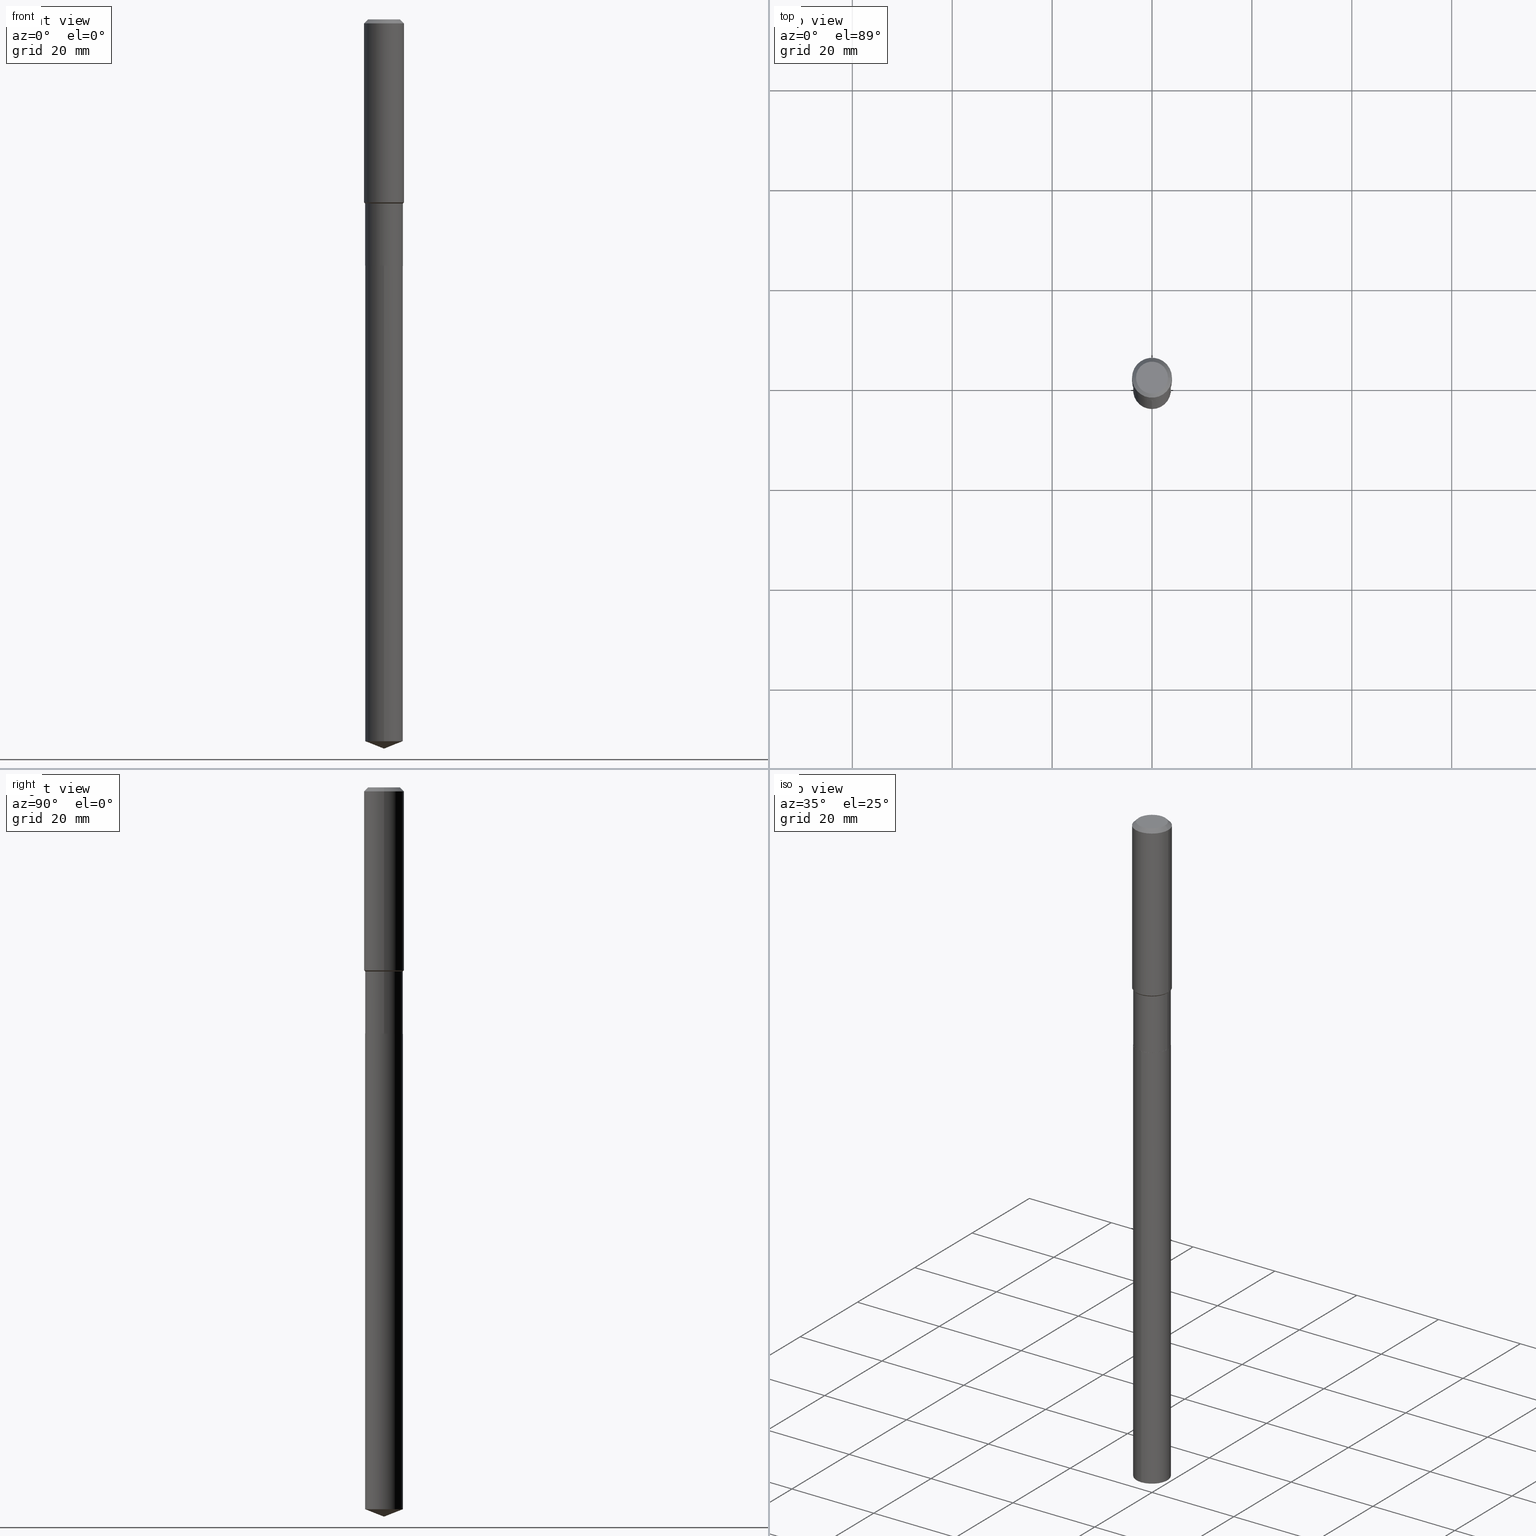
[diagram: canonical four-view strip — front | top / right | iso, engineering-drawing reading convention]
A machine part, canonical four-view strip (front | top / right | iso — engineering-drawing reading convention). The complete STEP part file that produces these views, byte-faithful:
ISO-10303-21;
HEADER;
FILE_DESCRIPTION (( 'STEP AP203' ),
    '1' );
FILE_NAME ('56522.STEP',
    '2024-04-24T18:18:19',
    ( '' ),
    ( '' ),
    'SwSTEP 2.0',
    'SolidWorks 2023',
    '' );
FILE_SCHEMA (( 'CONFIG_CONTROL_DESIGN' ));
ENDSEC;

DATA;
#1 = CONICAL_SURFACE ( 'NONE', #78, 0.1575000000000000011, 0.7853981633974449483 ) ;
#2 = CYLINDRICAL_SURFACE ( 'NONE', #128, 0.1575000000000000844 ) ;
#3 = ORIENTED_EDGE ( 'NONE', *, *, #459, .F. ) ;
#4 = CARTESIAN_POINT ( 'NONE',  ( 0.1575000000000000844, -1.099816621735587677E-15, 7.679978421878603638E-30 ) ) ;
#5 = LINE ( 'NONE', #162, #69 ) ;
#6 = ADVANCED_FACE ( 'NONE', ( #163 ), #2, .T. ) ;
#7 = ORIENTED_EDGE ( 'NONE', *, *, #42, .F. ) ;
#8 = PLANE ( 'NONE',  #30 ) ;
#9 = ORIENTED_EDGE ( 'NONE', *, *, #246, .F. ) ;
#10 = AXIS2_PLACEMENT_3D ( 'NONE', #73, #374, #181 ) ;
#11 = CIRCLE ( 'NONE', #115, 0.1484499999999999986 ) ;
#12 = FACE_OUTER_BOUND ( 'NONE', #213, .T. ) ;
#13 = ORIENTED_EDGE ( 'NONE', *, *, #294, .F. ) ;
#14 = CARTESIAN_POINT ( 'NONE',  ( 4.747633140327824663E-29, -6.778361871230083058E-15, -1.941400000000000237 ) ) ;
#15 = COORDINATED_UNIVERSAL_TIME_OFFSET ( 5, 0, .BEHIND. ) ;
#16 = EDGE_CURVE ( 'NONE', #54, #122, #182, .T. ) ;
#17 = LENGTH_MEASURE_WITH_UNIT ( LENGTH_MEASURE( 0.02539999999999999897 ), #291 );
#18 = ORIENTED_EDGE ( 'NONE', *, *, #83, .T. ) ;
#19 = ORIENTED_EDGE ( 'NONE', *, *, #94, .F. ) ;
#20 = AXIS2_PLACEMENT_3D ( 'NONE', #149, #234, #153 ) ;
#21 = AXIS2_PLACEMENT_3D ( 'NONE', #193, #286, #321 ) ;
#22 = CARTESIAN_POINT ( 'NONE',  ( -8.222513804490250465E-28, 1.173860011146192170E-13, 33.62207874015748388 ) ) ;
#23 = PERSON_AND_ORGANIZATION ( #331, #326 ) ;
#24 = ADVANCED_FACE ( 'NONE', ( #82 ), #254, .T. ) ;
#25 = CARTESIAN_POINT ( 'NONE',  ( -9.439721640706201686E-47, 1.347742071746726764E-32, 3.860086710912459732E-18 ) ) ;
#26 = ORIENTED_EDGE ( 'NONE', *, *, #296, .T. ) ;
#27 = APPLICATION_PROTOCOL_DEFINITION ( 'international standard', 'config_control_design', 1994, #317 ) ;
#28 = FACE_OUTER_BOUND ( 'NONE', #297, .T. ) ;
#29 = AXIS2_PLACEMENT_3D ( 'NONE', #263, #255, #484 ) ;
#30 = AXIS2_PLACEMENT_3D ( 'NONE', #150, #393, #161 ) ;
#31 = DIRECTION ( 'NONE',  ( -2.445468806185136597E-29, 3.491481338843145583E-15, 1.000000000000000000 ) ) ;
#32 = ORIENTED_EDGE ( 'NONE', *, *, #154, .F. ) ;
#33 = ORIENTED_EDGE ( 'NONE', *, *, #126, .T. ) ;
#34 = FACE_OUTER_BOUND ( 'NONE', #488, .T. ) ;
#35 = ORIENTED_EDGE ( 'NONE', *, *, #435, .T. ) ;
#36 = DATE_TIME_ROLE ( 'classification_date' ) ;
#37 = DIRECTION ( 'NONE',  ( 1.000000000000000000, -6.982962677686267499E-15, 0.000000000000000000 ) ) ;
#38 = AXIS2_PLACEMENT_3D ( 'NONE', #63, #405, #412 ) ;
#39 = AXIS2_PLACEMENT_3D ( 'NONE', #487, #362, #361 ) ;
#40 = CARTESIAN_POINT ( 'NONE',  ( -0.1575000000000001676, -3.917182448392135652E-15, -1.442449999999999788 ) ) ;
#41 = PERSON_AND_ORGANIZATION ( #331, #326 ) ;
#42 = EDGE_CURVE ( 'NONE', #370, #430, #159, .T. ) ;
#43 = LOCAL_TIME ( 14, 18, 19.00000000000000000, #143 ) ;
#44 = VERTEX_POINT ( 'NONE', #318 ) ;
#45 = CARTESIAN_POINT ( 'NONE',  ( 1.054800691236008147E-15, 0.1484499999999931985, -1.941400000000000681 ) ) ;
#46 = DIRECTION ( 'NONE',  ( -2.445468806185136877E-29, 3.491481338843145188E-15, 1.000000000000000000 ) ) ;
#47 = ORIENTED_EDGE ( 'NONE', *, *, #264, .T. ) ;
#48 = ORIENTED_EDGE ( 'NONE', *, *, #195, .F. ) ;
#49 = ORIENTED_EDGE ( 'NONE', *, *, #146, .F. ) ;
#50 = CARTESIAN_POINT ( 'NONE',  ( -0.1260000000000000009, 9.348441284752484904E-16, 3.860086710906114178E-18 ) ) ;
#51 = CARTESIAN_POINT ( 'NONE',  ( 4.747633140327824663E-29, -6.778361871230083058E-15, -1.941400000000000237 ) ) ;
#52 = LOCAL_TIME ( 14, 18, 19.00000000000000000, #15 ) ;
#53 = DIRECTION ( 'NONE',  ( 0.7071067811865451302, -7.319954787623248157E-15, -0.7071067811865499042 ) ) ;
#54 = VERTEX_POINT ( 'NONE', #118 ) ;
#55 = DIRECTION ( 'NONE',  ( 1.000000000000000000, -6.982962677686265133E-15, 0.000000000000000000 ) ) ;
#56 = ORIENTED_EDGE ( 'NONE', *, *, #16, .F. ) ;
#57 = ORIENTED_EDGE ( 'NONE', *, *, #111, .T. ) ;
#58 = DIRECTION ( 'NONE',  ( 0.000000000000000000, 0.000000000000000000, 1.000000000000000000 ) ) ;
#59 = VECTOR ( 'NONE', #303, 39.37007874015748143 ) ;
#60 = AXIS2_PLACEMENT_3D ( 'NONE', #431, #451, #85 ) ;
#61 = EDGE_LOOP ( 'NONE', ( #365, #242 ) ) ;
#62 = DIRECTION ( 'NONE',  ( -6.982962677686265922E-15, -1.000000000000000000, 3.498627837349976612E-15 ) ) ;
#63 = CARTESIAN_POINT ( 'NONE',  ( 4.747633140327824663E-29, -6.778361871230083058E-15, -1.941400000000000237 ) ) ;
#64 = PERSON_AND_ORGANIZATION ( #331, #326 ) ;
#65 = FACE_OUTER_BOUND ( 'NONE', #335, .T. ) ;
#66 = CARTESIAN_POINT ( 'NONE',  ( 0.000000000000000000, 0.000000000000000000, 0.000000000000000000 ) ) ;
#67 = ADVANCED_FACE ( 'NONE', ( #194 ), #314, .F. ) ;
#68 = EDGE_LOOP ( 'NONE', ( #119, #320, #200, #48 ) ) ;
#69 = VECTOR ( 'NONE', #409, 39.37007874015748143 ) ;
#70 = LOCAL_TIME ( 14, 18, 19.00000000000000000, #259 ) ;
#71 = APPROVAL ( #103, 'UNSPECIFIED' ) ;
#72 = DIRECTION ( 'NONE',  ( 1.000000000000000000, -6.982962677686265922E-15, 4.876281427513067258E-29 ) ) ;
#73 = CARTESIAN_POINT ( 'NONE',  ( 3.549597972177726133E-29, -5.067885163330826020E-15, -1.451500000000000012 ) ) ;
#74 = FACE_OUTER_BOUND ( 'NONE', #360, .T. ) ;
#75 = CARTESIAN_POINT ( 'NONE',  ( 1.054800691236008147E-15, 0.1484499999999801811, -5.689523989894962774 ) ) ;
#76 = ORIENTED_EDGE ( 'NONE', *, *, #106, .F. ) ;
#77 = CIRCLE ( 'NONE', #205, 0.1260000000000000009 ) ;
#78 = AXIS2_PLACEMENT_3D ( 'NONE', #105, #134, #262 ) ;
#79 = DIRECTION ( 'NONE',  ( 1.000000000000000000, -6.982962677686268288E-15, 0.000000000000000000 ) ) ;
#80 = DIRECTION ( 'NONE',  ( -2.438088387897960049E-29, 3.491481338843145188E-15, 1.000000000000000000 ) ) ;
#81 = ORIENTED_EDGE ( 'NONE', *, *, #126, .F. ) ;
#82 = FACE_OUTER_BOUND ( 'NONE', #304, .T. ) ;
#83 = EDGE_CURVE ( 'NONE', #310, #44, #236, .T. ) ;
#84 = ORIENTED_EDGE ( 'NONE', *, *, #319, .F. ) ;
#85 = DIRECTION ( 'NONE',  ( 1.000000000000000000, -6.982962677686264344E-15, 0.000000000000000000 ) ) ;
#86 = ORIENTED_EDGE ( 'NONE', *, *, #466, .T. ) ;
#87 = DIRECTION ( 'NONE',  ( -6.982962677686265133E-15, -1.000000000000000000, 3.680495781292372402E-15 ) ) ;
#88 = MANIFOLD_SOLID_BREP ( 'Body-Move/Copy2[2]', #442 ) ;
#89 = CARTESIAN_POINT ( 'NONE',  ( 0.1479499999999999982, -7.811491199393766736E-15, -1.941400000000000237 ) ) ;
#90 = AXIS2_PLACEMENT_3D ( 'NONE', #427, #272, #397 ) ;
#91 =( NAMED_UNIT ( * ) PLANE_ANGLE_UNIT ( ) SI_UNIT ( $, .RADIAN. ) );
#92 = DIRECTION ( 'NONE',  ( 1.000000000000000000, -6.982962677686264344E-15, 0.000000000000000000 ) ) ;
#93 =( NAMED_UNIT ( * ) SI_UNIT ( $, .STERADIAN. ) SOLID_ANGLE_UNIT ( ) );
#94 = EDGE_CURVE ( 'NONE', #122, #330, #5, .T. ) ;
#95 = VERTEX_POINT ( 'NONE', #184 ) ;
#96 = PERSON_AND_ORGANIZATION_ROLE ( 'creator' ) ;
#97 = CYLINDRICAL_SURFACE ( 'NONE', #448, 0.1484499999999999431 ) ;
#98 = VECTOR ( 'NONE', #116, 39.37007874015748143 ) ;
#99 = AXIS2_PLACEMENT_3D ( 'NONE', #401, #58, #302 ) ;
#100 = ORIENTED_EDGE ( 'NONE', *, *, #42, .T. ) ;
#101 = CARTESIAN_POINT ( 'NONE',  ( 3.549597972177726133E-29, -5.067885163330826020E-15, -1.451500000000000012 ) ) ;
#102 = DIRECTION ( 'NONE',  ( -2.445468806185136597E-29, 3.491481338843145583E-15, 1.000000000000000000 ) ) ;
#103 = APPROVAL_STATUS ( 'not_yet_approved' ) ;
#104 = EDGE_CURVE ( 'NONE', #482, #330, #354, .T. ) ;
#105 = CARTESIAN_POINT ( 'NONE',  ( 7.703226739483228723E-31, -1.099816621735597661E-16, -0.03150000000000019451 ) ) ;
#106 = EDGE_CURVE ( 'NONE', #44, #248, #196, .T. ) ;
#107 = CARTESIAN_POINT ( 'NONE',  ( 0.1575000000000000011, -1.209798283909146741E-15, -0.03150000000000019451 ) ) ;
#108 = VECTOR ( 'NONE', #348, 39.37007874015748854 ) ;
#109 = CARTESIAN_POINT ( 'NONE',  ( 3.549597972177726133E-29, -5.067885163330826020E-15, -1.451500000000000012 ) ) ;
#110 = CARTESIAN_POINT ( 'NONE',  ( 4.747633140327824663E-29, -6.778361871230083058E-15, -1.941400000000000237 ) ) ;
#111 = EDGE_CURVE ( 'NONE', #381, #455, #323, .T. ) ;
#112 = APPROVAL_ROLE ( '' ) ;
#113 = DIRECTION ( 'NONE',  ( 1.000000000000000000, -6.982962677686266711E-15, 4.876176775795936353E-29 ) ) ;
#114 = CONICAL_SURFACE ( 'NONE', #148, 0.1484499999999999431, 0.7853981633974456145 ) ;
#115 = AXIS2_PLACEMENT_3D ( 'NONE', #269, #416, #79 ) ;
#116 = DIRECTION ( 'NONE',  ( -2.445468806185136877E-29, 3.491481338843145188E-15, 1.000000000000000000 ) ) ;
#117 = ADVANCED_FACE ( 'NONE', ( #267 ), #227, .F. ) ;
#118 = CARTESIAN_POINT ( 'NONE',  ( -1.036620809502387253E-15, -0.1484500000000198716, -5.689523989894962774 ) ) ;
#119 = ORIENTED_EDGE ( 'NONE', *, *, #202, .F. ) ;
#120 = CARTESIAN_POINT ( 'NONE',  ( -1.036620809502478564E-15, -0.1484500000000067710, -1.941399999999999570 ) ) ;
#121 = AXIS2_PLACEMENT_3D ( 'NONE', #22, #288, #62 ) ;
#122 = VERTEX_POINT ( 'NONE', #75 ) ;
#123 = DIRECTION ( 'NONE',  ( 6.611014441532073689E-15, 0.9304175679820281264, 0.3665012267242879762 ) ) ;
#124 = CARTESIAN_POINT ( 'NONE',  ( 4.746410405924732422E-29, -6.776616130560662344E-15, -1.940900000000000292 ) ) ;
#125 = DIRECTION ( 'NONE',  ( -2.445468806185136877E-29, 3.491481338843145188E-15, 1.000000000000000000 ) ) ;
#126 = EDGE_CURVE ( 'NONE', #310, #292, #460, .T. ) ;
#127 = CARTESIAN_POINT ( 'NONE',  ( -1.036620809502478564E-15, -0.1484500000000067710, -1.941399999999999570 ) ) ;
#128 = AXIS2_PLACEMENT_3D ( 'NONE', #285, #390, #157 ) ;
#129 = CIRCLE ( 'NONE', #411, 0.1479499999999999982 ) ;
#130 = PRODUCT_RELATED_PRODUCT_CATEGORY ( 'detail', '', ( #214 ) ) ;
#131 = PERSON_AND_ORGANIZATION ( #331, #326 ) ;
#132 = ADVANCED_FACE ( 'NONE', ( #305 ), #97, .T. ) ;
#133 = APPROVAL_DATE_TIME ( #470, #467 ) ;
#134 = DIRECTION ( 'NONE',  ( 2.445468806185136597E-29, -3.491481338843145583E-15, -1.000000000000000000 ) ) ;
#135 = MECHANICAL_CONTEXT ( 'NONE', #317, 'mechanical' ) ;
#136 = CARTESIAN_POINT ( 'NONE',  ( 0.1484499999999999986, -7.813236940063189028E-15, -1.940900000000000292 ) ) ;
#137 = CLOSED_SHELL ( 'NONE', ( #225, #168, #483, #415, #117 ) ) ;
#138 = VECTOR ( 'NONE', #383, 39.37007874015748143 ) ;
#139 = ORIENTED_EDGE ( 'NONE', *, *, #387, .F. ) ;
#140 = CONICAL_SURFACE ( 'NONE', #60, 0.1484499999999999431, 0.7853981633974456145 ) ;
#141 = DIRECTION ( 'NONE',  ( -2.445468806185136597E-29, 3.491481338843145583E-15, 1.000000000000000000 ) ) ;
#142 = ORIENTED_EDGE ( 'NONE', *, *, #421, .F. ) ;
#143 = COORDINATED_UNIVERSAL_TIME_OFFSET ( 5, 0, .BEHIND. ) ;
#144 = CARTESIAN_POINT ( 'NONE',  ( 3.527466479481750238E-29, -5.036287257214294044E-15, -1.442449999999999788 ) ) ;
#145 = DIRECTION ( 'NONE',  ( -2.445564221112672413E-29, 3.491344699236233540E-15, 1.000000000000000000 ) ) ;
#146 = EDGE_CURVE ( 'NONE', #292, #248, #268, .T. ) ;
#147 = APPROVAL_DATE_TIME ( #349, #473 ) ;
#148 = AXIS2_PLACEMENT_3D ( 'NONE', #109, #260, #414 ) ;
#149 = CARTESIAN_POINT ( 'NONE',  ( 4.747633140327824663E-29, -6.778361871230083058E-15, -1.941400000000000237 ) ) ;
#150 = CARTESIAN_POINT ( 'NONE',  ( -4.719860820353100843E-47, 6.738710358733633822E-33, 1.930043355456229866E-18 ) ) ;
#151 = ADVANCED_FACE ( 'NONE', ( #65 ), #380, .T. ) ;
#152 = CARTESIAN_POINT ( 'NONE',  ( 0.1479499999999999982, -7.811491199393766736E-15, -1.941400000000000237 ) ) ;
#153 = DIRECTION ( 'NONE',  ( 6.982962677686265922E-15, 1.000000000000000000, -3.491344699236233540E-15 ) ) ;
#154 = EDGE_CURVE ( 'NONE', #381, #310, #345, .T. ) ;
#155 = CIRCLE ( 'NONE', #90, 0.1575000000000000011 ) ;
#156 = DIRECTION ( 'NONE',  ( -2.445468806185136597E-29, 3.491481338843145583E-15, 1.000000000000000000 ) ) ;
#157 = DIRECTION ( 'NONE',  ( 1.000000000000000000, -6.982962677686267499E-15, 4.876176775795936353E-29 ) ) ;
#158 = CC_DESIGN_PERSON_AND_ORGANIZATION_ASSIGNMENT ( #417, #313, ( #235 ) ) ;
#159 = LINE ( 'NONE', #490, #98 ) ;
#160 = ORIENTED_EDGE ( 'NONE', *, *, #273, .F. ) ;
#161 = DIRECTION ( 'NONE',  ( -1.000000000000000000, 6.982962677686265922E-15, -4.876176775795935793E-29 ) ) ;
#162 = CARTESIAN_POINT ( 'NONE',  ( 1.054800691235916048E-15, 0.1484499999999931985, -1.941400000000000681 ) ) ;
#163 = FACE_OUTER_BOUND ( 'NONE', #203, .T. ) ;
#164 = ORIENTED_EDGE ( 'NONE', *, *, #429, .F. ) ;
#165 = CARTESIAN_POINT ( 'NONE',  ( -0.1479499999999999982, -5.724464666498904237E-15, -1.941400000000000237 ) ) ;
#166 = CC_DESIGN_PERSON_AND_ORGANIZATION_ASSIGNMENT ( #293, #339, ( #389 ) ) ;
#167 = DIRECTION ( 'NONE',  ( -2.445564221112672413E-29, 3.491344699236233540E-15, 1.000000000000000000 ) ) ;
#168 = ADVANCED_FACE ( 'NONE', ( #34 ), #425, .T. ) ;
#169 = APPROVAL_PERSON_ORGANIZATION ( #64, #467, #408 ) ;
#170 = LINE ( 'NONE', #89, #223 ) ;
#171 = ORIENTED_EDGE ( 'NONE', *, *, #387, .T. ) ;
#172 = DIRECTION ( 'NONE',  ( -2.445468806185136597E-29, 3.491481338843145583E-15, 1.000000000000000000 ) ) ;
#173 = CC_DESIGN_SECURITY_CLASSIFICATION ( #235, ( #389 ) ) ;
#174 = ORIENTED_EDGE ( 'NONE', *, *, #83, .F. ) ;
#175 = DATE_AND_TIME ( #253, #290 ) ;
#176 = EDGE_LOOP ( 'NONE', ( #249, #9, #86, #257 ) ) ;
#177 = DATE_TIME_ROLE ( 'creation_date' ) ;
#178 = LINE ( 'NONE', #190, #475 ) ;
#179 = ORIENTED_EDGE ( 'NONE', *, *, #202, .T. ) ;
#180 = CC_DESIGN_DATE_AND_TIME_ASSIGNMENT ( #226, #36, ( #235 ) ) ;
#181 = DIRECTION ( 'NONE',  ( 1.000000000000000000, -6.982962677686264344E-15, 0.000000000000000000 ) ) ;
#182 = CIRCLE ( 'NONE', #230, 0.1484499999999999986 ) ;
#183 = CALENDAR_DATE ( 2024, 24, 4 ) ;
#184 = CARTESIAN_POINT ( 'NONE',  ( 0.1575000000000001676, -6.136103878949882313E-15, -1.442449999999999788 ) ) ;
#185 = DIRECTION ( 'NONE',  ( -2.445468806185136597E-29, 3.491481338843145583E-15, 1.000000000000000000 ) ) ;
#186 = ORIENTED_EDGE ( 'NONE', *, *, #344, .F. ) ;
#187 = CARTESIAN_POINT ( 'NONE',  ( -8.222513804490250465E-28, 1.173860011146192170E-13, 33.62207874015748388 ) ) ;
#188 = VERTEX_POINT ( 'NONE', #107 ) ;
#189 = EDGE_CURVE ( 'NONE', #122, #54, #308, .T. ) ;
#190 = CARTESIAN_POINT ( 'NONE',  ( 1.405673266587500572E-28, -2.006877987547558797E-14, -5.748000000000000220 ) ) ;
#191 = CONICAL_SURFACE ( 'NONE', #419, 0.1479499999999999982, 0.7853981633975507526 ) ;
#192 = AXIS2_PLACEMENT_3D ( 'NONE', #388, #353, #489 ) ;
#193 = CARTESIAN_POINT ( 'NONE',  ( 7.703226739483228723E-31, -1.099816621735597661E-16, -0.03150000000000019451 ) ) ;
#194 = FACE_OUTER_BOUND ( 'NONE', #283, .T. ) ;
#195 = EDGE_CURVE ( 'NONE', #370, #95, #280, .T. ) ;
#196 = CIRCLE ( 'NONE', #265, 0.1484499999999999431 ) ;
#197 = ORIENTED_EDGE ( 'NONE', *, *, #111, .F. ) ;
#198 = FACE_OUTER_BOUND ( 'NONE', #438, .T. ) ;
#199 = PRODUCT_DEFINITION_SHAPE ( 'NONE', 'NONE',  #256 ) ;
#200 = ORIENTED_EDGE ( 'NONE', *, *, #369, .T. ) ;
#201 = LINE ( 'NONE', #463, #243 ) ;
#202 = EDGE_CURVE ( 'NONE', #44, #370, #220, .T. ) ;
#203 = EDGE_LOOP ( 'NONE', ( #7, #277, #373, #186 ) ) ;
#204 = CYLINDRICAL_SURFACE ( 'NONE', #477, 0.1484499999999999431 ) ;
#205 = AXIS2_PLACEMENT_3D ( 'NONE', #25, #141, #72 ) ;
#206 = CIRCLE ( 'NONE', #10, 0.1484499999999999431 ) ;
#207 = VECTOR ( 'NONE', #125, 39.37007874015748143 ) ;
#208 =( CONVERSION_BASED_UNIT ( 'INCH', #17 ) LENGTH_UNIT ( ) NAMED_UNIT ( #437 ) );
#209 = APPROVAL_ROLE ( '' ) ;
#210 = ADVANCED_FACE ( 'NONE', ( #28 ), #191, .T. ) ;
#211 = VERTEX_POINT ( 'NONE', #379 ) ;
#212 = APPROVAL_DATE_TIME ( #245, #71 ) ;
#213 = EDGE_LOOP ( 'NONE', ( #423, #26, #368, #392 ) ) ;
#214 = PRODUCT ( '56522', '56522', '', ( #135 ) ) ;
#215 = ORIENTED_EDGE ( 'NONE', *, *, #421, .T. ) ;
#216 = APPLICATION_CONTEXT ( 'configuration controlled 3d designs of mechanical parts and assemblies' ) ;
#217 = FACE_OUTER_BOUND ( 'NONE', #68, .T. ) ;
#218 = DIRECTION ( 'NONE',  ( -2.445564221112672413E-29, 3.491344699236233540E-15, 1.000000000000000000 ) ) ;
#219 = DIRECTION ( 'NONE',  ( -6.982962677686265133E-15, -1.000000000000000000, 3.680495781292372402E-15 ) ) ;
#220 = LINE ( 'NONE', #449, #108 ) ;
#221 = DIRECTION ( 'NONE',  ( 1.000000000000000000, -6.982962677686265133E-15, 0.000000000000000000 ) ) ;
#222 = AXIS2_PLACEMENT_3D ( 'NONE', #187, #145, #444 ) ;
#223 = VECTOR ( 'NONE', #456, 39.37007874015748143 ) ;
#224 = DIRECTION ( 'NONE',  ( -2.445468806185136597E-29, 3.491481338843145583E-15, 1.000000000000000000 ) ) ;
#225 = ADVANCED_FACE ( 'NONE', ( #446 ), #307, .T. ) ;
#226 = DATE_AND_TIME ( #351, #486 ) ;
#227 = PLANE ( 'NONE',  #20 ) ;
#228 = CARTESIAN_POINT ( 'NONE',  ( 0.1484499999999999431, -6.104505972833351915E-15, -1.451500000000000012 ) ) ;
#229 = DIRECTION ( 'NONE',  ( -2.445564221112672413E-29, 3.491344699236233540E-15, 1.000000000000000000 ) ) ;
#230 = AXIS2_PLACEMENT_3D ( 'NONE', #457, #167, #316 ) ;
#231 = CARTESIAN_POINT ( 'NONE',  ( 0.1260000000000000009, -1.027466422270894443E-15, 3.860086710919128072E-18 ) ) ;
#232 = ADVANCED_FACE ( 'NONE', ( #217 ), #114, .T. ) ;
#233 = ORIENTED_EDGE ( 'NONE', *, *, #154, .T. ) ;
#234 = DIRECTION ( 'NONE',  ( 2.445564221112672413E-29, -3.491344699236233540E-15, -1.000000000000000000 ) ) ;
#235 = SECURITY_CLASSIFICATION ( '', '', #386 ) ;
#236 = LINE ( 'NONE', #394, #274 ) ;
#237 = ORIENTED_EDGE ( 'NONE', *, *, #94, .T. ) ;
#238 = DIRECTION ( 'NONE',  ( -2.445468806185136597E-29, 3.491481338843145583E-15, 1.000000000000000000 ) ) ;
#239 = FACE_OUTER_BOUND ( 'NONE', #338, .T. ) ;
#240 = LINE ( 'NONE', #120, #276 ) ;
#241 = AXIS2_PLACEMENT_3D ( 'NONE', #479, #333, #219 ) ;
#242 = ORIENTED_EDGE ( 'NONE', *, *, #459, .T. ) ;
#243 = VECTOR ( 'NONE', #123, 39.37007874015748854 ) ;
#244 = EDGE_CURVE ( 'NONE', #248, #44, #206, .T. ) ;
#245 = DATE_AND_TIME ( #436, #70 ) ;
#246 = EDGE_CURVE ( 'NONE', #341, #395, #299, .T. ) ;
#247 = MANIFOLD_SOLID_BREP ( 'Body-Move/Copy2[1]', #137 ) ;
#248 = VERTEX_POINT ( 'NONE', #228 ) ;
#249 = ORIENTED_EDGE ( 'NONE', *, *, #296, .F. ) ;
#250 = ORIENTED_EDGE ( 'NONE', *, *, #189, .T. ) ;
#251 = DIRECTION ( 'NONE',  ( -6.982962677686265133E-15, -1.000000000000000000, 3.680495781292372402E-15 ) ) ;
#252 = ORIENTED_EDGE ( 'NONE', *, *, #429, .T. ) ;
#253 = CALENDAR_DATE ( 2024, 24, 4 ) ;
#254 = CONICAL_SURFACE ( 'NONE', #485, 0.1479499999999999982, 0.7853981633975507526 ) ;
#255 = DIRECTION ( 'NONE',  ( -2.445564221112672413E-29, 3.491344699236233540E-15, 1.000000000000000000 ) ) ;
#256 = PRODUCT_DEFINITION ( 'UNKNOWN', '', #389, #271 ) ;
#257 = ORIENTED_EDGE ( 'NONE', *, *, #344, .T. ) ;
#258 = ORIENTED_EDGE ( 'NONE', *, *, #16, .T. ) ;
#259 = COORDINATED_UNIVERSAL_TIME_OFFSET ( 5, 0, .BEHIND. ) ;
#260 = DIRECTION ( 'NONE',  ( -2.445468806185136597E-29, 3.491481338843145583E-15, 1.000000000000000000 ) ) ;
#261 = PERSON_AND_ORGANIZATION_ROLE ( 'design_owner' ) ;
#262 = DIRECTION ( 'NONE',  ( -1.000000000000000000, 6.982962677686265922E-15, 0.000000000000000000 ) ) ;
#263 = CARTESIAN_POINT ( 'NONE',  ( 1.391391106630902087E-28, -1.986435469543002324E-14, -5.689523989894962774 ) ) ;
#264 = EDGE_CURVE ( 'NONE', #395, #341, #77, .T. ) ;
#265 = AXIS2_PLACEMENT_3D ( 'NONE', #101, #471, #92 ) ;
#266 = CIRCLE ( 'NONE', #334, 0.1484499999999999986 ) ;
#267 = FACE_OUTER_BOUND ( 'NONE', #61, .T. ) ;
#268 = LINE ( 'NONE', #300, #59 ) ;
#269 = CARTESIAN_POINT ( 'NONE',  ( 4.746410405924732422E-29, -6.776616130560662344E-15, -1.940900000000000292 ) ) ;
#270 = PERSON_AND_ORGANIZATION_ROLE ( 'design_supplier' ) ;
#271 = DESIGN_CONTEXT ( 'detailed design', #216, 'design' ) ;
#272 = DIRECTION ( 'NONE',  ( -2.445468806185136597E-29, 3.491481338843145583E-15, 1.000000000000000000 ) ) ;
#273 = EDGE_CURVE ( 'NONE', #211, #54, #178, .T. ) ;
#274 = VECTOR ( 'NONE', #46, 39.37007874015748143 ) ;
#275 = CC_DESIGN_APPROVAL ( #71, ( #256 ) ) ;
#276 = VECTOR ( 'NONE', #398, 39.37007874015748143 ) ;
#277 = ORIENTED_EDGE ( 'NONE', *, *, #195, .T. ) ;
#278 = DIRECTION ( 'NONE',  ( 1.000000000000000000, -6.982962677686265133E-15, 0.000000000000000000 ) ) ;
#279 = ADVANCED_FACE ( 'NONE', ( #474 ), #1, .T. ) ;
#280 = CIRCLE ( 'NONE', #332, 0.1575000000000001676 ) ;
#281 = ORIENTED_EDGE ( 'NONE', *, *, #244, .T. ) ;
#282 = CARTESIAN_POINT ( 'NONE',  ( -0.1575000000000000011, -1.454029650871768556E-15, -0.03150000000000019451 ) ) ;
#283 = EDGE_LOOP ( 'NONE', ( #359, #197 ) ) ;
#284 = FACE_OUTER_BOUND ( 'NONE', #287, .T. ) ;
#285 = CARTESIAN_POINT ( 'NONE',  ( 0.000000000000000000, 0.000000000000000000, 0.000000000000000000 ) ) ;
#286 = DIRECTION ( 'NONE',  ( 2.445468806185136597E-29, -3.491481338843145583E-15, -1.000000000000000000 ) ) ;
#287 = EDGE_LOOP ( 'NONE', ( #19, #250, #252, #3 ) ) ;
#288 = DIRECTION ( 'NONE',  ( -2.445564221112672413E-29, 3.491344699236233540E-15, 1.000000000000000000 ) ) ;
#289 = AXIS2_PLACEMENT_3D ( 'NONE', #14, #172, #55 ) ;
#290 = LOCAL_TIME ( 14, 18, 19.00000000000000000, #367 ) ;
#291 =( LENGTH_UNIT ( ) NAMED_UNIT ( * ) SI_UNIT ( $, .METRE. ) );
#292 = VERTEX_POINT ( 'NONE', #136 ) ;
#293 = PERSON_AND_ORGANIZATION ( #331, #326 ) ;
#294 = EDGE_CURVE ( 'NONE', #188, #430, #155, .T. ) ;
#295 = DIRECTION ( 'NONE',  ( 1.000000000000000000, -6.982962677686266711E-15, 4.876176775795936353E-29 ) ) ;
#296 = EDGE_CURVE ( 'NONE', #395, #188, #325, .T. ) ;
#297 = EDGE_LOOP ( 'NONE', ( #32, #57, #215, #81 ) ) ;
#298 = PERSON_AND_ORGANIZATION ( #331, #326 ) ;
#299 = CIRCLE ( 'NONE', #342, 0.1260000000000000009 ) ;
#300 = CARTESIAN_POINT ( 'NONE',  ( 0.1484499999999999431, -1.036620809502525896E-15, 7.238684423669065009E-30 ) ) ;
#301 = VECTOR ( 'NONE', #465, 39.37007874015748143 ) ;
#302 = DIRECTION ( 'NONE',  ( 1.000000000000000000, 0.000000000000000000, 0.000000000000000000 ) ) ;
#303 = DIRECTION ( 'NONE',  ( -2.445468806185136877E-29, 3.491481338843145188E-15, 1.000000000000000000 ) ) ;
#304 = EDGE_LOOP ( 'NONE', ( #384, #233, #469, #142 ) ) ;
#305 = FACE_OUTER_BOUND ( 'NONE', #462, .T. ) ;
#306 = SHAPE_DEFINITION_REPRESENTATION ( #199, #428 ) ;
#307 = CYLINDRICAL_SURFACE ( 'NONE', #38, 0.1484499999999999986 ) ;
#308 = CIRCLE ( 'NONE', #29, 0.1484499999999999986 ) ;
#309 = LINE ( 'NONE', #464, #364 ) ;
#310 = VERTEX_POINT ( 'NONE', #350 ) ;
#311 = CC_DESIGN_PERSON_AND_ORGANIZATION_ASSIGNMENT ( #23, #261, ( #214 ) ) ;
#312 = DIRECTION ( 'NONE',  ( 0.7071067811865454633, -2.468850131082235761E-15, 0.7071067811865493491 ) ) ;
#313 = PERSON_AND_ORGANIZATION_ROLE ( 'classification_officer' ) ;
#314 = PLANE ( 'NONE',  #454 ) ;
#315 = CIRCLE ( 'NONE', #192, 0.1575000000000001676 ) ;
#316 = DIRECTION ( 'NONE',  ( -6.982962677686265133E-15, -1.000000000000000000, 0.000000000000000000 ) ) ;
#317 = APPLICATION_CONTEXT ( 'configuration controlled 3d designs of mechanical parts and assemblies' ) ;
#318 = CARTESIAN_POINT ( 'NONE',  ( -0.1484499999999999431, -4.867449955709876057E-15, -1.451500000000000012 ) ) ;
#319 = EDGE_CURVE ( 'NONE', #95, #188, #453, .T. ) ;
#320 = ORIENTED_EDGE ( 'NONE', *, *, #106, .T. ) ;
#321 = DIRECTION ( 'NONE',  ( -1.000000000000000000, 6.982962677686265922E-15, 0.000000000000000000 ) ) ;
#322 = CARTESIAN_POINT ( 'NONE',  ( 4.747633140327824663E-29, -6.778361871230083058E-15, -1.941400000000000237 ) ) ;
#323 = CIRCLE ( 'NONE', #289, 0.1479499999999999982 ) ;
#324 = EDGE_LOOP ( 'NONE', ( #139, #406, #426 ) ) ;
#325 = LINE ( 'NONE', #432, #420 ) ;
#326 = ORGANIZATION ( 'UNSPECIFIED', 'UNSPECIFIED', '' ) ;
#327 = CARTESIAN_POINT ( 'NONE',  ( 0.000000000000000000, 0.000000000000000000, 0.000000000000000000 ) ) ;
#328 = EDGE_LOOP ( 'NONE', ( #258, #237, #336, #164 ) ) ;
#329 = LINE ( 'NONE', #441, #301 ) ;
#330 = VERTEX_POINT ( 'NONE', #45 ) ;
#331 = PERSON ( 'UNSPECIFIED', 'UNSPECIFIED', 'UNSPECIFIED', ('UNSPECIFIED'), ('UNSPECIFIED'), ('UNSPECIFIED') ) ;
#332 = AXIS2_PLACEMENT_3D ( 'NONE', #144, #31, #37 ) ;
#333 = DIRECTION ( 'NONE',  ( -2.445564221112672413E-29, 3.491344699236233540E-15, 1.000000000000000000 ) ) ;
#334 = AXIS2_PLACEMENT_3D ( 'NONE', #434, #218, #251 ) ;
#335 = EDGE_LOOP ( 'NONE', ( #346, #100, #13, #84 ) ) ;
#336 = ORIENTED_EDGE ( 'NONE', *, *, #104, .F. ) ;
#337 = APPROVAL_STATUS ( 'not_yet_approved' ) ;
#338 = EDGE_LOOP ( 'NONE', ( #35, #18, #440, #49 ) ) ;
#339 = PERSON_AND_ORGANIZATION_ROLE ( 'creator' ) ;
#340 = CARTESIAN_POINT ( 'NONE',  ( 0.000000000000000000, 0.000000000000000000, 0.000000000000000000 ) ) ;
#341 = VERTEX_POINT ( 'NONE', #50 ) ;
#342 = AXIS2_PLACEMENT_3D ( 'NONE', #343, #478, #407 ) ;
#343 = CARTESIAN_POINT ( 'NONE',  ( -9.439721640706201686E-47, 1.347742071746726764E-32, 3.860086710912459732E-18 ) ) ;
#344 = EDGE_CURVE ( 'NONE', #430, #188, #355, .T. ) ;
#345 = LINE ( 'NONE', #447, #138 ) ;
#346 = ORIENTED_EDGE ( 'NONE', *, *, #450, .T. ) ;
#347 = COORDINATED_UNIVERSAL_TIME_OFFSET ( 5, 0, .BEHIND. ) ;
#348 = DIRECTION ( 'NONE',  ( -0.7071067811865454633, 7.493145998870346272E-15, 0.7071067811865493491 ) ) ;
#349 = DATE_AND_TIME ( #183, #43 ) ;
#350 = CARTESIAN_POINT ( 'NONE',  ( -0.1484499999999999986, -4.867449955709874479E-15, -1.940900000000000292 ) ) ;
#351 = CALENDAR_DATE ( 2024, 24, 4 ) ;
#352 = EDGE_CURVE ( 'NONE', #455, #381, #129, .T. ) ;
#353 = DIRECTION ( 'NONE',  ( -2.445468806185136597E-29, 3.491481338843145583E-15, 1.000000000000000000 ) ) ;
#354 = CIRCLE ( 'NONE', #241, 0.1484499999999999986 ) ;
#355 = CIRCLE ( 'NONE', #39, 0.1575000000000000011 ) ;
#356 = ADVANCED_FACE ( 'NONE', ( #74 ), #8, .F. ) ;
#357 = CARTESIAN_POINT ( 'NONE',  ( 4.747633140327824663E-29, -6.778361871230083058E-15, -1.941400000000000237 ) ) ;
#358 = CYLINDRICAL_SURFACE ( 'NONE', #372, 0.1484499999999999986 ) ;
#359 = ORIENTED_EDGE ( 'NONE', *, *, #352, .F. ) ;
#360 = EDGE_LOOP ( 'NONE', ( #458, #47 ) ) ;
#361 = DIRECTION ( 'NONE',  ( 1.000000000000000000, -6.982962677686265922E-15, 0.000000000000000000 ) ) ;
#362 = DIRECTION ( 'NONE',  ( -2.445468806185136597E-29, 3.491481338843145583E-15, 1.000000000000000000 ) ) ;
#363 = CC_DESIGN_PERSON_AND_ORGANIZATION_ASSIGNMENT ( #298, #270, ( #389 ) ) ;
#364 = VECTOR ( 'NONE', #312, 39.37007874015748854 ) ;
#365 = ORIENTED_EDGE ( 'NONE', *, *, #104, .T. ) ;
#366 = ADVANCED_FACE ( 'NONE', ( #239 ), #204, .T. ) ;
#367 = COORDINATED_UNIVERSAL_TIME_OFFSET ( 5, 0, .BEHIND. ) ;
#368 = ORIENTED_EDGE ( 'NONE', *, *, #294, .T. ) ;
#369 = EDGE_CURVE ( 'NONE', #248, #95, #309, .T. ) ;
#370 = VERTEX_POINT ( 'NONE', #40 ) ;
#371 = PERSON_AND_ORGANIZATION ( #331, #326 ) ;
#372 = AXIS2_PLACEMENT_3D ( 'NONE', #110, #229, #87 ) ;
#373 = ORIENTED_EDGE ( 'NONE', *, *, #319, .T. ) ;
#374 = DIRECTION ( 'NONE',  ( -2.445468806185136597E-29, 3.491481338843145583E-15, 1.000000000000000000 ) ) ;
#375 = ORIENTED_EDGE ( 'NONE', *, *, #369, .F. ) ;
#376 = DIRECTION ( 'NONE',  ( 1.000000000000000000, -6.982962677686267499E-15, 4.876176775795936353E-29 ) ) ;
#377 = ORIENTED_EDGE ( 'NONE', *, *, #450, .F. ) ;
#378 =( GEOMETRIC_REPRESENTATION_CONTEXT ( 3 ) GLOBAL_UNCERTAINTY_ASSIGNED_CONTEXT ( ( #480 ) ) GLOBAL_UNIT_ASSIGNED_CONTEXT ( ( #208, #91, #93 ) ) REPRESENTATION_CONTEXT ( 'NONE', 'WORKASPACE' ) );
#379 = CARTESIAN_POINT ( 'NONE',  ( 1.405710314295564132E-28, -2.006824933120987397E-14, -5.748000000000000220 ) ) ;
#380 = CYLINDRICAL_SURFACE ( 'NONE', #468, 0.1575000000000000844 ) ;
#381 = VERTEX_POINT ( 'NONE', #165 ) ;
#382 = APPROVAL_STATUS ( 'not_yet_approved' ) ;
#383 = DIRECTION ( 'NONE',  ( -0.7071067811866199593, 7.493145998870616062E-15, 0.7071067811864750752 ) ) ;
#384 = ORIENTED_EDGE ( 'NONE', *, *, #352, .T. ) ;
#385 = CC_DESIGN_DATE_AND_TIME_ASSIGNMENT ( #175, #177, ( #256 ) ) ;
#386 = SECURITY_CLASSIFICATION_LEVEL ( 'unclassified' ) ;
#387 = EDGE_CURVE ( 'NONE', #211, #122, #201, .T. ) ;
#388 = CARTESIAN_POINT ( 'NONE',  ( 3.527466479481750238E-29, -5.036287257214294044E-15, -1.442449999999999788 ) ) ;
#389 = PRODUCT_DEFINITION_FORMATION_WITH_SPECIFIED_SOURCE ( 'ANY', '', #214, .NOT_KNOWN. ) ;
#390 = DIRECTION ( 'NONE',  ( -2.445468806185136597E-29, 3.491481338843145583E-15, 1.000000000000000000 ) ) ;
#391 = CC_DESIGN_APPROVAL ( #467, ( #389 ) ) ;
#392 = ORIENTED_EDGE ( 'NONE', *, *, #466, .F. ) ;
#393 = DIRECTION ( 'NONE',  ( 2.438088387897960049E-29, -3.491481338843145188E-15, -1.000000000000000000 ) ) ;
#394 = CARTESIAN_POINT ( 'NONE',  ( -0.1484499999999999431, 1.054800691235868322E-15, -7.302159141483405952E-30 ) ) ;
#395 = VERTEX_POINT ( 'NONE', #231 ) ;
#396 = DIRECTION ( 'NONE',  ( -2.445468806185136597E-29, 3.491481338843145583E-15, 1.000000000000000000 ) ) ;
#397 = DIRECTION ( 'NONE',  ( 1.000000000000000000, -6.982962677686265922E-15, 0.000000000000000000 ) ) ;
#398 = DIRECTION ( 'NONE',  ( -2.445564221112672413E-29, 3.491344699236233540E-15, 1.000000000000000000 ) ) ;
#399 = CALENDAR_DATE ( 2024, 24, 4 ) ;
#400 = ADVANCED_FACE ( 'NONE', ( #198 ), #140, .T. ) ;
#401 = CARTESIAN_POINT ( 'NONE',  ( 0.000000000000000000, 0.000000000000000000, 0.000000000000000000 ) ) ;
#402 = FACE_OUTER_BOUND ( 'NONE', #324, .T. ) ;
#403 = AXIS2_PLACEMENT_3D ( 'NONE', #124, #102, #481 ) ;
#404 = CONICAL_SURFACE ( 'NONE', #21, 0.1575000000000000011, 0.7853981633974449483 ) ;
#405 = DIRECTION ( 'NONE',  ( -2.445564221112672413E-29, 3.491344699236233540E-15, 1.000000000000000000 ) ) ;
#406 = ORIENTED_EDGE ( 'NONE', *, *, #273, .T. ) ;
#407 = DIRECTION ( 'NONE',  ( 1.000000000000000000, -6.982962677686265922E-15, 4.876281427513067258E-29 ) ) ;
#408 = APPROVAL_ROLE ( '' ) ;
#409 = DIRECTION ( 'NONE',  ( -2.445564221112672413E-29, 3.491344699236233540E-15, 1.000000000000000000 ) ) ;
#410 = CARTESIAN_POINT ( 'NONE',  ( 4.747633140327824663E-29, -6.778361871230083058E-15, -1.941400000000000237 ) ) ;
#411 = AXIS2_PLACEMENT_3D ( 'NONE', #51, #238, #418 ) ;
#412 = DIRECTION ( 'NONE',  ( -6.982962677686265133E-15, -1.000000000000000000, 3.680495781292372402E-15 ) ) ;
#413 = ADVANCED_FACE ( 'NONE', ( #12 ), #404, .T. ) ;
#414 = DIRECTION ( 'NONE',  ( 1.000000000000000000, -6.982962677686264344E-15, 0.000000000000000000 ) ) ;
#415 = ADVANCED_FACE ( 'NONE', ( #284 ), #358, .T. ) ;
#416 = DIRECTION ( 'NONE',  ( -2.445468806185136597E-29, 3.491481338843145583E-15, 1.000000000000000000 ) ) ;
#417 = PERSON_AND_ORGANIZATION ( #331, #326 ) ;
#418 = DIRECTION ( 'NONE',  ( 1.000000000000000000, -6.982962677686265133E-15, 0.000000000000000000 ) ) ;
#419 = AXIS2_PLACEMENT_3D ( 'NONE', #410, #185, #221 ) ;
#420 = VECTOR ( 'NONE', #53, 39.37007874015748143 ) ;
#421 = EDGE_CURVE ( 'NONE', #455, #292, #170, .T. ) ;
#422 = CC_DESIGN_PERSON_AND_ORGANIZATION_ASSIGNMENT ( #371, #96, ( #256 ) ) ;
#423 = ORIENTED_EDGE ( 'NONE', *, *, #264, .F. ) ;
#424 = DIRECTION ( 'NONE',  ( 1.000000000000000000, -6.982962677686265922E-15, 4.876176775795935793E-29 ) ) ;
#425 = CONICAL_SURFACE ( 'NONE', #222, 99.94676754584075695, 1.195550537616122178 ) ;
#426 = ORIENTED_EDGE ( 'NONE', *, *, #189, .F. ) ;
#427 = CARTESIAN_POINT ( 'NONE',  ( 7.703226739483228723E-31, -1.099816621735597661E-16, -0.03150000000000019451 ) ) ;
#428 = ADVANCED_BREP_SHAPE_REPRESENTATION ( '56522', ( #247, #88, #99 ), #378 ) ;
#429 = EDGE_CURVE ( 'NONE', #54, #482, #240, .T. ) ;
#430 = VERTEX_POINT ( 'NONE', #282 ) ;
#431 = CARTESIAN_POINT ( 'NONE',  ( 3.549597972177726133E-29, -5.067885163330826020E-15, -1.451500000000000012 ) ) ;
#432 = CARTESIAN_POINT ( 'NONE',  ( 0.1575000000000000011, -1.190510096822576026E-15, -0.03150000000000019451 ) ) ;
#433 = CC_DESIGN_APPROVAL ( #473, ( #235 ) ) ;
#434 = CARTESIAN_POINT ( 'NONE',  ( 4.747633140327824663E-29, -6.778361871230083058E-15, -1.941400000000000237 ) ) ;
#435 = EDGE_CURVE ( 'NONE', #292, #310, #11, .T. ) ;
#436 = CALENDAR_DATE ( 2024, 24, 4 ) ;
#437 = DIMENSIONAL_EXPONENTS ( 1.000000000000000000, 0.000000000000000000, 0.000000000000000000, 0.000000000000000000, 0.000000000000000000, 0.000000000000000000, 0.000000000000000000 ) ;
#438 = EDGE_LOOP ( 'NONE', ( #281, #179, #377, #375 ) ) ;
#439 = DIRECTION ( 'NONE',  ( -2.445468806185136597E-29, 3.491481338843145583E-15, 1.000000000000000000 ) ) ;
#440 = ORIENTED_EDGE ( 'NONE', *, *, #244, .F. ) ;
#441 = CARTESIAN_POINT ( 'NONE',  ( -0.1575000000000000011, 9.898349595620272334E-16, -0.03150000000000019451 ) ) ;
#442 = CLOSED_SHELL ( 'NONE', ( #24, #413, #151, #400, #366, #132, #232, #6, #279, #356, #67, #210 ) ) ;
#443 = APPROVAL_PERSON_ORGANIZATION ( #41, #473, #112 ) ;
#444 = DIRECTION ( 'NONE',  ( -6.982962677686265922E-15, -1.000000000000000000, 3.498627837349976612E-15 ) ) ;
#445 = APPLICATION_PROTOCOL_DEFINITION ( 'international standard', 'config_control_design', 1994, #216 ) ;
#446 = FACE_OUTER_BOUND ( 'NONE', #328, .T. ) ;
#447 = CARTESIAN_POINT ( 'NONE',  ( -0.1479499999999999982, -5.727113893673015438E-15, -1.941400000000000237 ) ) ;
#448 = AXIS2_PLACEMENT_3D ( 'NONE', #66, #439, #295 ) ;
#449 = CARTESIAN_POINT ( 'NONE',  ( -0.1484499999999999431, -4.013084472094957501E-15, -1.451500000000000012 ) ) ;
#450 = EDGE_CURVE ( 'NONE', #95, #370, #315, .T. ) ;
#451 = DIRECTION ( 'NONE',  ( -2.445468806185136597E-29, 3.491481338843145583E-15, 1.000000000000000000 ) ) ;
#452 = ORIENTED_EDGE ( 'NONE', *, *, #146, .T. ) ;
#453 = LINE ( 'NONE', #4, #207 ) ;
#454 = AXIS2_PLACEMENT_3D ( 'NONE', #322, #80, #424 ) ;
#455 = VERTEX_POINT ( 'NONE', #152 ) ;
#456 = DIRECTION ( 'NONE',  ( 0.7071067811866199593, -2.468850131083015945E-15, 0.7071067811864750752 ) ) ;
#457 = CARTESIAN_POINT ( 'NONE',  ( 1.391391106630902087E-28, -1.986435469543002324E-14, -5.689523989894962774 ) ) ;
#458 = ORIENTED_EDGE ( 'NONE', *, *, #246, .T. ) ;
#459 = EDGE_CURVE ( 'NONE', #330, #482, #266, .T. ) ;
#460 = CIRCLE ( 'NONE', #403, 0.1484499999999999986 ) ;
#461 = CONICAL_SURFACE ( 'NONE', #121, 99.94676754584075695, 1.195550537616122178 ) ;
#462 = EDGE_LOOP ( 'NONE', ( #174, #33, #452, #76 ) ) ;
#463 = CARTESIAN_POINT ( 'NONE',  ( 1.405710639160232353E-28, -2.006824933120987397E-14, -5.748000000000000220 ) ) ;
#464 = CARTESIAN_POINT ( 'NONE',  ( 0.1484499999999999431, -6.104505972833351915E-15, -1.451500000000000012 ) ) ;
#465 = DIRECTION ( 'NONE',  ( -0.7071067811865451302, 2.468850131082231817E-15, -0.7071067811865499042 ) ) ;
#466 = EDGE_CURVE ( 'NONE', #341, #430, #329, .T. ) ;
#467 = APPROVAL ( #337, 'UNSPECIFIED' ) ;
#468 = AXIS2_PLACEMENT_3D ( 'NONE', #340, #224, #376 ) ;
#469 = ORIENTED_EDGE ( 'NONE', *, *, #435, .F. ) ;
#470 = DATE_AND_TIME ( #399, #52 ) ;
#471 = DIRECTION ( 'NONE',  ( -2.445468806185136597E-29, 3.491481338843145583E-15, 1.000000000000000000 ) ) ;
#472 = DIRECTION ( 'NONE',  ( -6.497071151882127725E-15, -0.9304175679820255729, 0.3665012267242945820 ) ) ;
#473 = APPROVAL ( #382, 'UNSPECIFIED' ) ;
#474 = FACE_OUTER_BOUND ( 'NONE', #176, .T. ) ;
#475 = VECTOR ( 'NONE', #472, 39.37007874015748143 ) ;
#476 = APPROVAL_PERSON_ORGANIZATION ( #131, #71, #209 ) ;
#477 = AXIS2_PLACEMENT_3D ( 'NONE', #327, #396, #113 ) ;
#478 = DIRECTION ( 'NONE',  ( -2.445468806185136597E-29, 3.491481338843145583E-15, 1.000000000000000000 ) ) ;
#479 = CARTESIAN_POINT ( 'NONE',  ( 4.747633140327824663E-29, -6.778361871230083058E-15, -1.941400000000000237 ) ) ;
#480 = UNCERTAINTY_MEASURE_WITH_UNIT (LENGTH_MEASURE( 1.000000000000000082E-05 ), #208, 'distance_accuracy_value', 'NONE');
#481 = DIRECTION ( 'NONE',  ( 1.000000000000000000, -6.982962677686268288E-15, 0.000000000000000000 ) ) ;
#482 = VERTEX_POINT ( 'NONE', #127 ) ;
#483 = ADVANCED_FACE ( 'NONE', ( #402 ), #461, .T. ) ;
#484 = DIRECTION ( 'NONE',  ( -6.982962677686265133E-15, -1.000000000000000000, 0.000000000000000000 ) ) ;
#485 = AXIS2_PLACEMENT_3D ( 'NONE', #357, #156, #278 ) ;
#486 = LOCAL_TIME ( 14, 18, 19.00000000000000000, #347 ) ;
#487 = CARTESIAN_POINT ( 'NONE',  ( 7.703226739483228723E-31, -1.099816621735597661E-16, -0.03150000000000019451 ) ) ;
#488 = EDGE_LOOP ( 'NONE', ( #160, #171, #56 ) ) ;
#489 = DIRECTION ( 'NONE',  ( 1.000000000000000000, -6.982962677686267499E-15, 0.000000000000000000 ) ) ;
#490 = CARTESIAN_POINT ( 'NONE',  ( -0.1575000000000000844, 1.119104808822158392E-15, -7.747322767151481189E-30 ) ) ;
ENDSEC;
END-ISO-10303-21;
